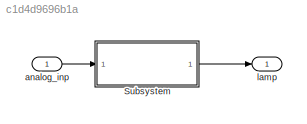
MODEL slx_c1d4d9696b1a
KIND model
CONFIG AbsTol = auto
CONFIG EnableMultiTasking = off
CONFIG FixedStep = 0.01
CONFIG MaxStep = auto
CONFIG MinStep = auto
CONFIG RelTol = 1e-3
CONFIG SampleTimeConstraint = Unconstrained
CONFIG Solver = FixedStepDiscrete
CONFIG SolverName = FixedStepDiscrete
CONFIG StartTime = 0.0
CONFIG StopTime = 10.0
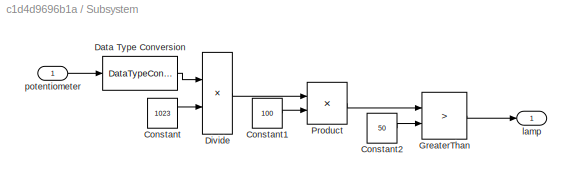
BLOCK [SubSystem] Subsystem
  Ports = [1, 1]
  RTWFcnNameOpts = Use subsystem name
  RTWFileNameOpts = Use subsystem name
  RTWSystemCode = Reusable function
  RequestExecContextInheritance = off
  TreatAsAtomicUnit = on
BLOCK [Constant] Subsystem/Constant
  OutDataTypeStr = single
  Value = 1023
BLOCK [Constant] Subsystem/Constant1
  OutDataTypeStr = uint8
  Value = 100
BLOCK [Constant] Subsystem/Constant2
  OutDataTypeStr = uint8
  Value = 50
BLOCK [DataTypeConversion] Subsystem/Data Type Conversion
  OutDataTypeStr = single
  RndMeth = Floor
  SaturateOnIntegerOverflow = off
BLOCK [Product] Subsystem/Divide
  InputSameDT = off
  Inputs = */
  OutDataTypeStr = Inherit: Inherit via internal rule
  Ports = [2, 1]
  RndMeth = Floor
  SaturateOnIntegerOverflow = off
BLOCK [RelationalOperator] Subsystem/GreaterThan
  InputSameDT = off
  Operator = >
  OutDataTypeStr = boolean
  Ports = [2, 1]
  RndMeth = Simplest
BLOCK [Product] Subsystem/Product
  InputSameDT = off
  OutDataTypeStr = Inherit: Inherit via internal rule
  Ports = [2, 1]
  RndMeth = Floor
  SaturateOnIntegerOverflow = off
BLOCK [Outport] Subsystem/lamp
  IconDisplay = Port number
  OutDataTypeStr = boolean
BLOCK [Inport] Subsystem/potentiometer
  IconDisplay = Port number
  OutDataTypeStr = uint16
BLOCK [Inport] analog_inp
  IconDisplay = Port number
  OutDataTypeStr = uint16
BLOCK [Outport] lamp
  IconDisplay = Port number
  OutDataTypeStr = boolean
LINE Subsystem/Constant1:1 -> Subsystem/Product:2
LINE Subsystem/Constant2:1 -> Subsystem/GreaterThan:2
LINE Subsystem/Constant:1 -> Subsystem/Divide:2
LINE Subsystem/Data Type Conversion:1 -> Subsystem/Divide:1
LINE Subsystem/Divide:1 -> Subsystem/Product:1
LINE Subsystem/GreaterThan:1 -> Subsystem/lamp:1
LINE Subsystem/Product:1 -> Subsystem/GreaterThan:1
LINE Subsystem/potentiometer:1 -> Subsystem/Data Type Conversion:1
LINE Subsystem:1 -> lamp:1
LINE analog_inp:1 -> Subsystem:1
